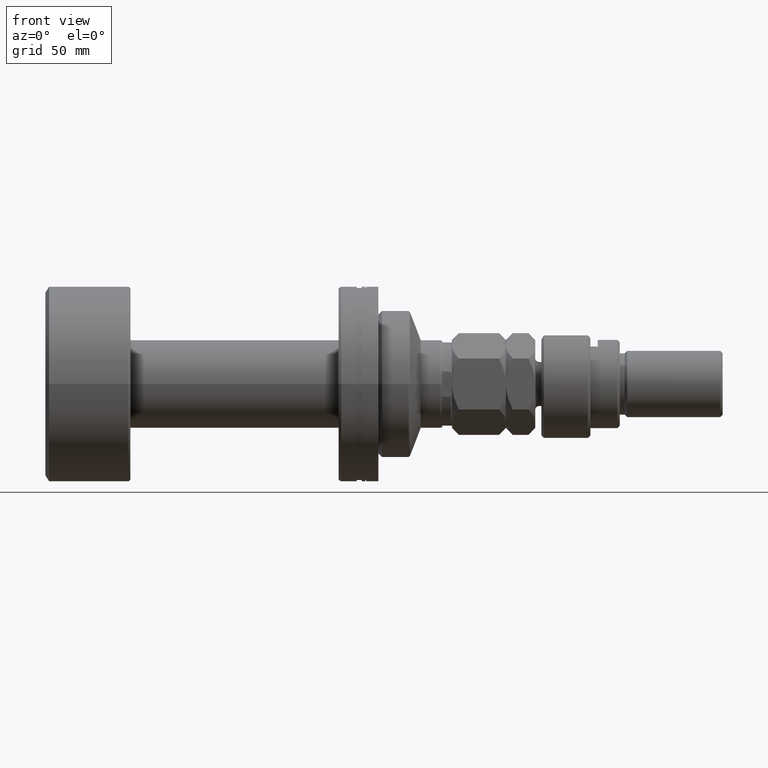
[diagram: clean part render]
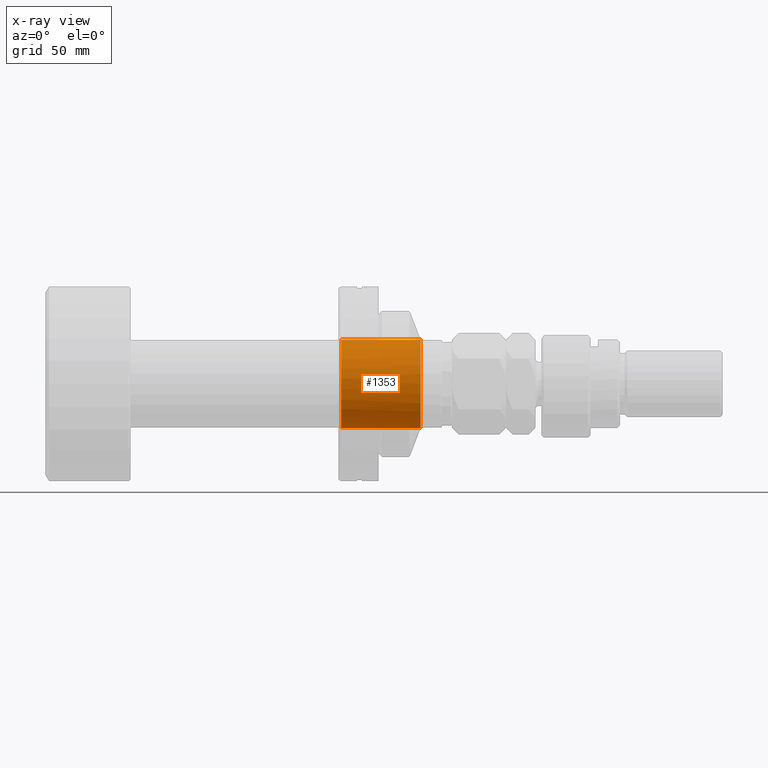
[diagram: x-ray — body ghosted, one internal face saturated and labeled with its STEP entity id]
A machine part, front view, then the same camera in x-ray: the body is ghosted and one INTERNAL B-rep face — a face not visible from any outside direction — is saturated and labeled: STEP entity #1353.
In plain terms, the highlighted cylindrical surface (partial cylindrical patch) has radius 18 mm, axis along (1, 0, 0).
Its self-contained STEP definition (entity closure, byte-faithful):
#25 = ORIENTED_EDGE ( 'NONE', *, *, #1460, .F. ) ;
#86 = FACE_OUTER_BOUND ( 'NONE', #1012, .T. ) ;
#92 = CARTESIAN_POINT ( 'NONE',  ( -39.19999999999999574, 0.000000000000000000, 0.000000000000000000 ) ) ;
#208 = AXIS2_PLACEMENT_3D ( 'NONE', #5146, #3169, #1532 ) ;
#283 = EDGE_CURVE ( 'NONE', #4475, #3666, #3369, .T. ) ;
#1012 = EDGE_LOOP ( 'NONE', ( #4364, #2057, #3270, #1038, #25 ) ) ;
#1038 = ORIENTED_EDGE ( 'NONE', *, *, #283, .F. ) ;
#1257 = VERTEX_POINT ( 'NONE', #4421 ) ;
#1279 = DIRECTION ( 'NONE',  ( -1.000000000000000000, 0.000000000000000000, 0.000000000000000000 ) ) ;
#1304 = CARTESIAN_POINT ( 'NONE',  ( -39.19999999999999574, 2.204364238465235033E-15, 18.00000000000000000 ) ) ;
#1347 = CARTESIAN_POINT ( 'NONE',  ( -91.11168824543142364, 0.000000000000000000, -18.00000000000000000 ) ) ;
#1353 = ADVANCED_FACE ( 'NONE', ( #86 ), #2847, .F. ) ;
#1450 = CARTESIAN_POINT ( 'NONE',  ( -91.11168824543142364, 2.204364238465235033E-15, 18.00000000000000000 ) ) ;
#1460 = EDGE_CURVE ( 'NONE', #4940, #4475, #3689, .T. ) ;
#1532 = DIRECTION ( 'NONE',  ( 3.854941057726238097E-16, -1.000000000000000000, 0.000000000000000000 ) ) ;
#1557 = DIRECTION ( 'NONE',  ( 3.854941057726238097E-16, -1.000000000000000000, 0.000000000000000000 ) ) ;
#1763 = CARTESIAN_POINT ( 'NONE',  ( -6.772881355932611314, -17.99999999999998934, 0.000000000000000000 ) ) ;
#1792 = EDGE_CURVE ( 'NONE', #3666, #1257, #4238, .T. ) ;
#1866 = LINE ( 'NONE', #1450, #3073 ) ;
#2056 = DIRECTION ( 'NONE',  ( 0.000000000000000000, 0.000000000000000000, -1.000000000000000000 ) ) ;
#2057 = ORIENTED_EDGE ( 'NONE', *, *, #5075, .T. ) ;
#2363 = AXIS2_PLACEMENT_3D ( 'NONE', #3197, #3985, #2056 ) ;
#2596 = DIRECTION ( 'NONE',  ( 1.000000000000000000, -0.000000000000000000, -0.000000000000000000 ) ) ;
#2847 = CYLINDRICAL_SURFACE ( 'NONE', #2363, 18.00000000000000000 ) ;
#2946 = DIRECTION ( 'NONE',  ( 1.000000000000000000, -0.000000000000000000, -0.000000000000000000 ) ) ;
#2965 = AXIS2_PLACEMENT_3D ( 'NONE', #92, #1279, #4504 ) ;
#3073 = VECTOR ( 'NONE', #2596, 1000.000000000000000 ) ;
#3130 = VECTOR ( 'NONE', #2946, 1000.000000000000000 ) ;
#3169 = DIRECTION ( 'NONE',  ( -1.000000000000000000, -3.738146982434194072E-16, 0.000000000000000000 ) ) ;
#3197 = CARTESIAN_POINT ( 'NONE',  ( -91.11168824543142364, 0.000000000000000000, 0.000000000000000000 ) ) ;
#3270 = ORIENTED_EDGE ( 'NONE', *, *, #1792, .F. ) ;
#3369 = CIRCLE ( 'NONE', #4560, 18.00000000000000000 ) ;
#3554 = CARTESIAN_POINT ( 'NONE',  ( -6.772881355932618419, 8.787314973116373205E-15, 0.000000000000000000 ) ) ;
#3666 = VERTEX_POINT ( 'NONE', #1763 ) ;
#3689 = LINE ( 'NONE', #1347, #3130 ) ;
#3814 = CIRCLE ( 'NONE', #2965, 18.00000000000000000 ) ;
#3985 = DIRECTION ( 'NONE',  ( 1.000000000000000000, -0.000000000000000000, -0.000000000000000000 ) ) ;
#4013 = CARTESIAN_POINT ( 'NONE',  ( -6.772881355932618419, 4.622231866529366047E-30, -18.00000000000000000 ) ) ;
#4033 = EDGE_CURVE ( 'NONE', #4940, #4455, #3814, .T. ) ;
#4132 = CARTESIAN_POINT ( 'NONE',  ( -39.19999999999999574, 0.000000000000000000, -18.00000000000000000 ) ) ;
#4238 = CIRCLE ( 'NONE', #208, 18.00000000000000000 ) ;
#4364 = ORIENTED_EDGE ( 'NONE', *, *, #4033, .T. ) ;
#4421 = CARTESIAN_POINT ( 'NONE',  ( -6.772881355932618419, 2.204364238465240161E-15, 18.00000000000000000 ) ) ;
#4455 = VERTEX_POINT ( 'NONE', #1304 ) ;
#4475 = VERTEX_POINT ( 'NONE', #4013 ) ;
#4504 = DIRECTION ( 'NONE',  ( 0.000000000000000000, 0.000000000000000000, -1.000000000000000000 ) ) ;
#4560 = AXIS2_PLACEMENT_3D ( 'NONE', #3554, #5170, #1557 ) ;
#4940 = VERTEX_POINT ( 'NONE', #4132 ) ;
#5075 = EDGE_CURVE ( 'NONE', #4455, #1257, #1866, .T. ) ;
#5146 = CARTESIAN_POINT ( 'NONE',  ( -6.772881355932618419, 8.787314973116373205E-15, 0.000000000000000000 ) ) ;
#5170 = DIRECTION ( 'NONE',  ( -1.000000000000000000, -3.738146982434194072E-16, 0.000000000000000000 ) ) ;